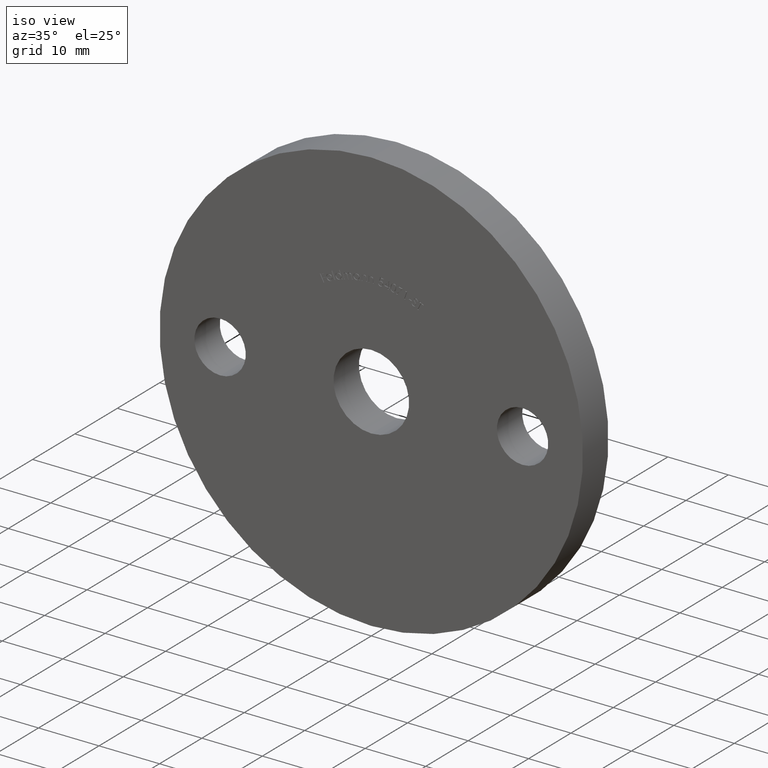
[diagram: clean part render]
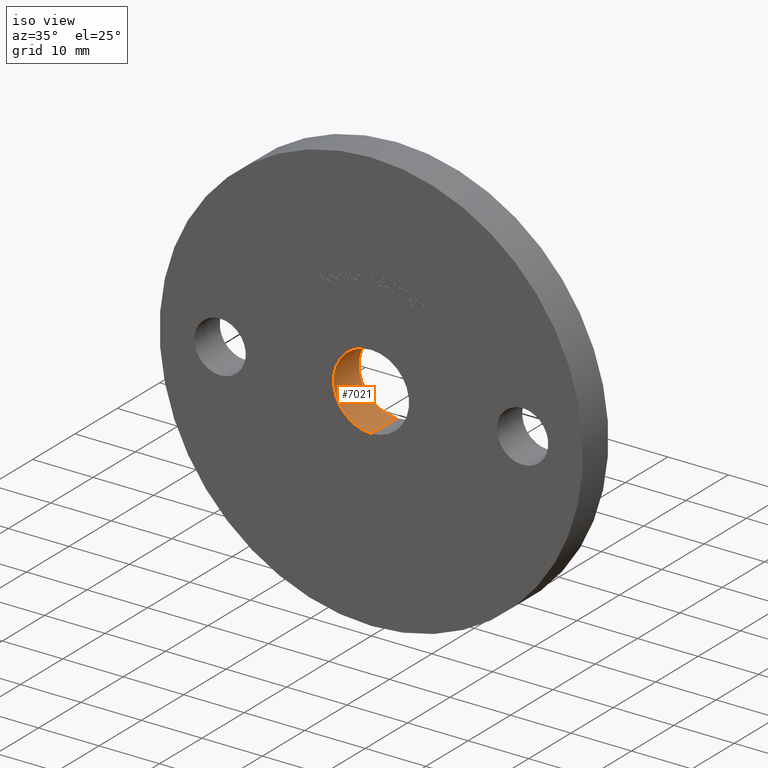
[diagram: same view with one face highlighted and labeled with its STEP entity id]
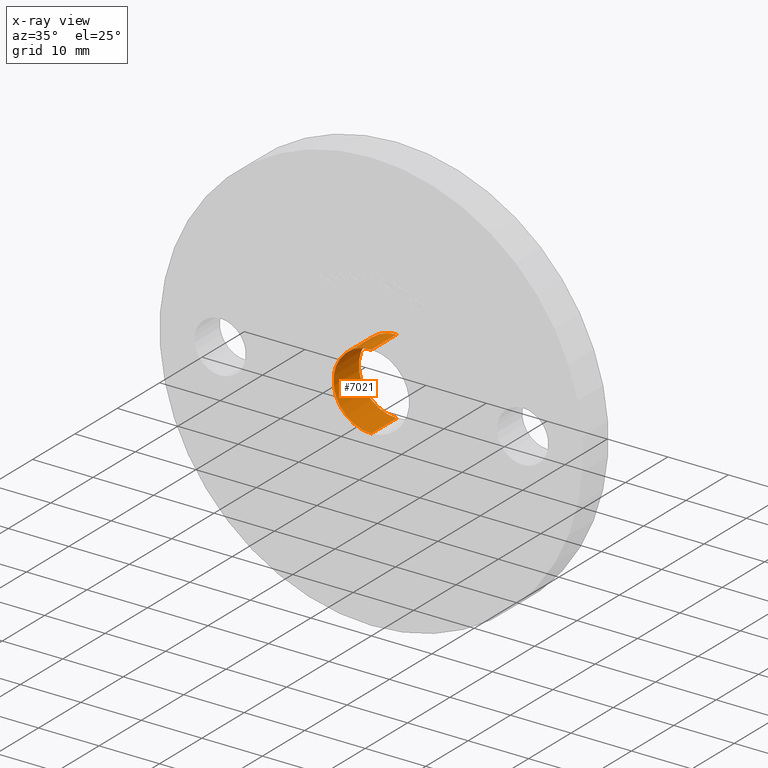
[diagram: x-ray of the same camera — body ghosted, the highlighted face saturated]
A machine part, iso view. The second image highlights one B-rep face of the part: STEP entity #7021.
The next image is the same camera in x-ray: the body ghosted, the highlighted face saturated — about 0% of this face is hidden behind the body in this view.
In plain terms, the highlighted cylindrical surface (partial cylindrical patch) has radius 6.25 mm, axis along (-0, 1, -0).
Its self-contained STEP definition (entity closure, byte-faithful):
#137 = VERTEX_POINT ( 'NONE', #9607 ) ;
#432 = CARTESIAN_POINT ( 'NONE',  ( 7.654042494670957600E-016, 0.0000000000000000000, -6.250000000000000000 ) ) ;
#557 = FACE_OUTER_BOUND ( 'NONE', #7705, .T. ) ;
#606 = CARTESIAN_POINT ( 'NONE',  ( 0.0000000000000000000, 6.000000000000000000, 0.0000000000000000000 ) ) ;
#887 = ORIENTED_EDGE ( 'NONE', *, *, #10364, .F. ) ;
#928 = CARTESIAN_POINT ( 'NONE',  ( 0.0000000000000000000, 6.000000000000000000, 6.250000000000000000 ) ) ;
#1033 = EDGE_CURVE ( 'NONE', #1629, #137, #3100, .T. ) ;
#1288 = VECTOR ( 'NONE', #3211, 1000.000000000000000 ) ;
#1511 = DIRECTION ( 'NONE',  ( 0.0000000000000000000, 1.000000000000000000, 0.0000000000000000000 ) ) ;
#1629 = VERTEX_POINT ( 'NONE', #3231 ) ;
#1940 = DIRECTION ( 'NONE',  ( 0.0000000000000000000, 0.0000000000000000000, 1.000000000000000000 ) ) ;
#2242 = CYLINDRICAL_SURFACE ( 'NONE', #8381, 6.250000000000000000 ) ;
#2388 = CIRCLE ( 'NONE', #4831, 6.250000000000000000 ) ;
#2392 = CARTESIAN_POINT ( 'NONE',  ( 0.0000000000000000000, 0.0000000000000000000, 6.250000000000000000 ) ) ;
#2429 = DIRECTION ( 'NONE',  ( 0.0000000000000000000, 0.0000000000000000000, 1.000000000000000000 ) ) ;
#2601 = VERTEX_POINT ( 'NONE', #928 ) ;
#2737 = CARTESIAN_POINT ( 'NONE',  ( 0.0000000000000000000, 0.0000000000000000000, 0.0000000000000000000 ) ) ;
#2963 = DIRECTION ( 'NONE',  ( -0.0000000000000000000, 1.000000000000000000, -0.0000000000000000000 ) ) ;
#3100 = LINE ( 'NONE', #432, #8027 ) ;
#3211 = DIRECTION ( 'NONE',  ( -0.0000000000000000000, 1.000000000000000000, -0.0000000000000000000 ) ) ;
#3231 = CARTESIAN_POINT ( 'NONE',  ( 7.654042494670957600E-016, 0.0000000000000000000, -6.250000000000000000 ) ) ;
#3343 = EDGE_CURVE ( 'NONE', #137, #2601, #7205, .T. ) ;
#4016 = DIRECTION ( 'NONE',  ( 0.0000000000000000000, 1.000000000000000000, 0.0000000000000000000 ) ) ;
#4020 = LINE ( 'NONE', #9604, #1288 ) ;
#4041 = DIRECTION ( 'NONE',  ( 0.0000000000000000000, 0.0000000000000000000, 1.000000000000000000 ) ) ;
#4831 = AXIS2_PLACEMENT_3D ( 'NONE', #10669, #1511, #4041 ) ;
#4985 = VERTEX_POINT ( 'NONE', #2392 ) ;
#5092 = ORIENTED_EDGE ( 'NONE', *, *, #1033, .T. ) ;
#6885 = DIRECTION ( 'NONE',  ( -0.0000000000000000000, 1.000000000000000000, -0.0000000000000000000 ) ) ;
#7021 = ADVANCED_FACE ( 'NONE', ( #557 ), #2242, .F. ) ;
#7205 = CIRCLE ( 'NONE', #10061, 6.250000000000000000 ) ;
#7347 = EDGE_CURVE ( 'NONE', #1629, #4985, #2388, .T. ) ;
#7705 = EDGE_LOOP ( 'NONE', ( #7720, #5092, #8994, #887 ) ) ;
#7720 = ORIENTED_EDGE ( 'NONE', *, *, #7347, .F. ) ;
#8027 = VECTOR ( 'NONE', #2963, 1000.000000000000000 ) ;
#8381 = AXIS2_PLACEMENT_3D ( 'NONE', #2737, #6885, #1940 ) ;
#8994 = ORIENTED_EDGE ( 'NONE', *, *, #3343, .T. ) ;
#9604 = CARTESIAN_POINT ( 'NONE',  ( 0.0000000000000000000, 0.0000000000000000000, 6.250000000000000000 ) ) ;
#9607 = CARTESIAN_POINT ( 'NONE',  ( 7.654042494670957600E-016, 6.000000000000000000, -6.250000000000000000 ) ) ;
#10061 = AXIS2_PLACEMENT_3D ( 'NONE', #606, #4016, #2429 ) ;
#10364 = EDGE_CURVE ( 'NONE', #4985, #2601, #4020, .T. ) ;
#10669 = CARTESIAN_POINT ( 'NONE',  ( 0.0000000000000000000, 0.0000000000000000000, 0.0000000000000000000 ) ) ;